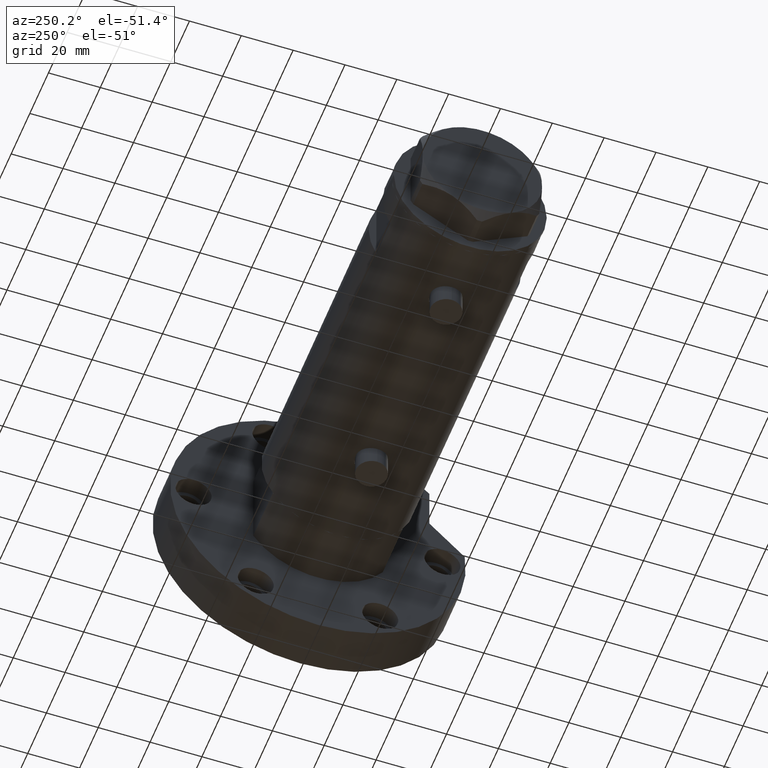
[diagram: clean part render]
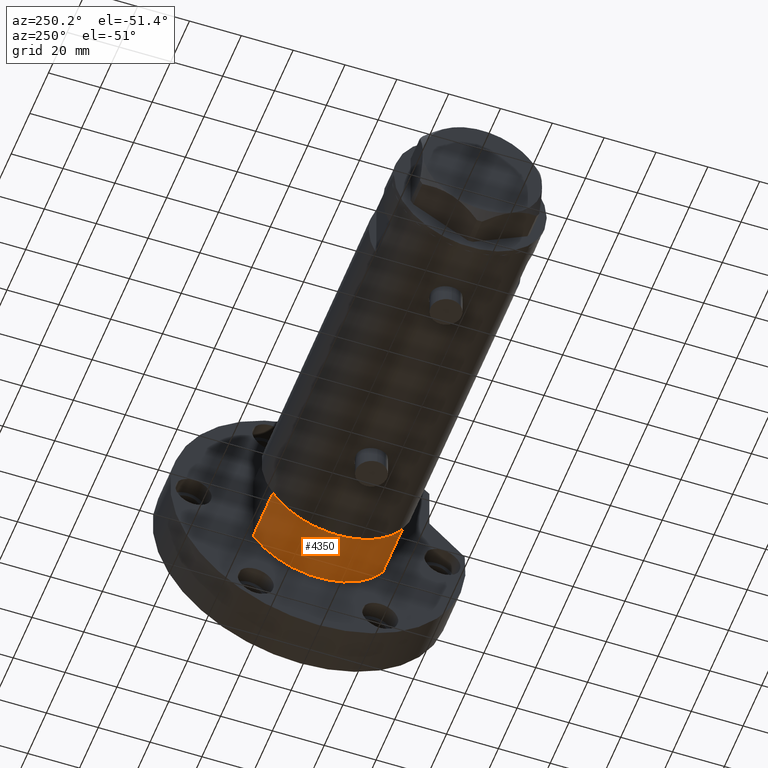
[diagram: same view with one face highlighted and labeled with its STEP entity id]
A machine part, auxiliary view. The second image highlights one B-rep face of the part: STEP entity #4350.
In plain terms, the highlighted cylindrical surface (partial cylindrical patch) has radius 29.5 mm, axis along (-1, -0, 0).
Its self-contained STEP definition (entity closure, byte-faithful):
#35 = CARTESIAN_POINT ( 'NONE',  ( 15.66045976336582690, 25.00000000000000000, 0.000000000000000000 ) ) ;
#272 = DIRECTION ( 'NONE',  ( 1.000000000000000000, 0.000000000000000000, 0.000000000000000000 ) ) ;
#458 = EDGE_CURVE ( 'NONE', #2743, #3235, #4348, .T. ) ;
#625 = EDGE_CURVE ( 'NONE', #5028, #2743, #3988, .T. ) ;
#687 = CARTESIAN_POINT ( 'NONE',  ( 0.000000000000000000, 0.000000000000000000, 21.00000000000000000 ) ) ;
#805 = CARTESIAN_POINT ( 'NONE',  ( 0.000000000000000000, 0.000000000000000000, 0.000000000000000000 ) ) ;
#918 = ORIENTED_EDGE ( 'NONE', *, *, #5605, .F. ) ;
#977 = AXIS2_PLACEMENT_3D ( 'NONE', #687, #4974, #5873 ) ;
#1423 = CYLINDRICAL_SURFACE ( 'NONE', #3831, 29.50000000000000355 ) ;
#1522 = CARTESIAN_POINT ( 'NONE',  ( 0.000000000000000000, 0.000000000000000000, 21.00000000000000000 ) ) ;
#1671 = ORIENTED_EDGE ( 'NONE', *, *, #625, .T. ) ;
#2021 = VECTOR ( 'NONE', #4373, 1000.000000000000000 ) ;
#2256 = ORIENTED_EDGE ( 'NONE', *, *, #458, .T. ) ;
#2743 = VERTEX_POINT ( 'NONE', #35 ) ;
#2894 = DIRECTION ( 'NONE',  ( -0.000000000000000000, -0.000000000000000000, 1.000000000000000000 ) ) ;
#2985 = CARTESIAN_POINT ( 'NONE',  ( 15.66045976336583045, 24.99999999999999645, 20.99999999999999645 ) ) ;
#3124 = VECTOR ( 'NONE', #2894, 1000.000000000000000 ) ;
#3235 = VERTEX_POINT ( 'NONE', #2985 ) ;
#3275 = EDGE_CURVE ( 'NONE', #5028, #5171, #5775, .T. ) ;
#3307 = DIRECTION ( 'NONE',  ( -0.000000000000000000, -0.000000000000000000, -1.000000000000000000 ) ) ;
#3640 = CIRCLE ( 'NONE', #977, 29.50000000000000355 ) ;
#3831 = AXIS2_PLACEMENT_3D ( 'NONE', #1522, #3307, #4730 ) ;
#3908 = EDGE_LOOP ( 'NONE', ( #918, #5422, #1671, #2256 ) ) ;
#3988 = CIRCLE ( 'NONE', #5272, 29.50000000000000355 ) ;
#4125 = CARTESIAN_POINT ( 'NONE',  ( 15.66045976336583045, -25.00000000000000000, 21.00000000000000355 ) ) ;
#4348 = LINE ( 'NONE', #5319, #2021 ) ;
#4350 = ADVANCED_FACE ( 'NONE', ( #5191 ), #1423, .T. ) ;
#4373 = DIRECTION ( 'NONE',  ( -0.000000000000000000, -0.000000000000000000, 1.000000000000000000 ) ) ;
#4730 = DIRECTION ( 'NONE',  ( -1.000000000000000000, 0.000000000000000000, 0.000000000000000000 ) ) ;
#4974 = DIRECTION ( 'NONE',  ( 0.000000000000000000, 0.000000000000000000, 1.000000000000000000 ) ) ;
#5028 = VERTEX_POINT ( 'NONE', #6019 ) ;
#5091 = DIRECTION ( 'NONE',  ( 0.000000000000000000, 0.000000000000000000, 1.000000000000000000 ) ) ;
#5171 = VERTEX_POINT ( 'NONE', #4125 ) ;
#5191 = FACE_OUTER_BOUND ( 'NONE', #3908, .T. ) ;
#5272 = AXIS2_PLACEMENT_3D ( 'NONE', #805, #5091, #272 ) ;
#5311 = CARTESIAN_POINT ( 'NONE',  ( 15.66045976336583401, -25.00000000000000000, 0.000000000000000000 ) ) ;
#5319 = CARTESIAN_POINT ( 'NONE',  ( 15.66045976336583401, 25.00000000000000000, 0.000000000000000000 ) ) ;
#5422 = ORIENTED_EDGE ( 'NONE', *, *, #3275, .F. ) ;
#5605 = EDGE_CURVE ( 'NONE', #5171, #3235, #3640, .T. ) ;
#5775 = LINE ( 'NONE', #5311, #3124 ) ;
#5873 = DIRECTION ( 'NONE',  ( 1.000000000000000000, 0.000000000000000000, 0.000000000000000000 ) ) ;
#6019 = CARTESIAN_POINT ( 'NONE',  ( 15.66045976336583401, -25.00000000000000000, 0.000000000000000000 ) ) ;